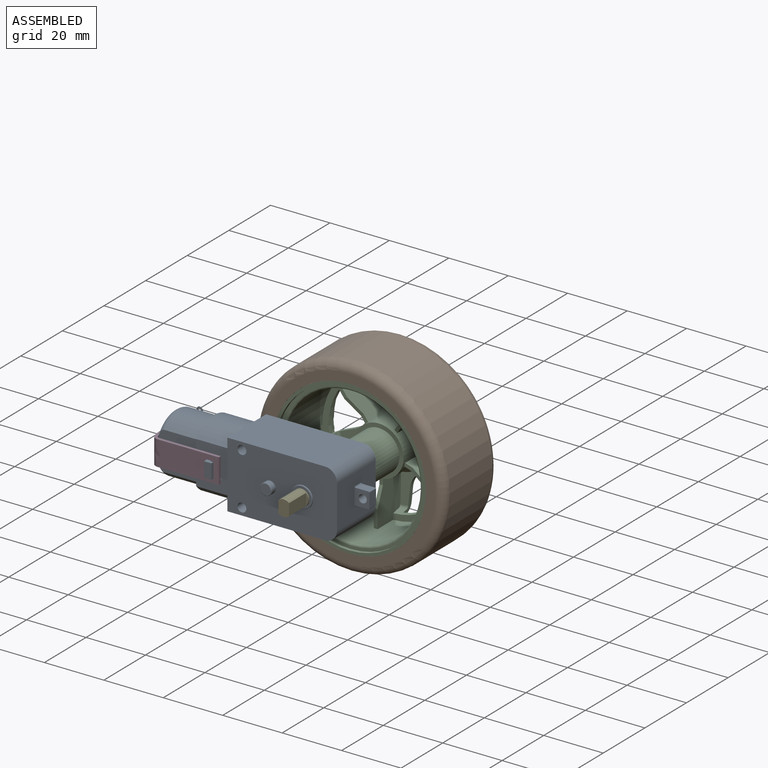
[diagram: assembled view]
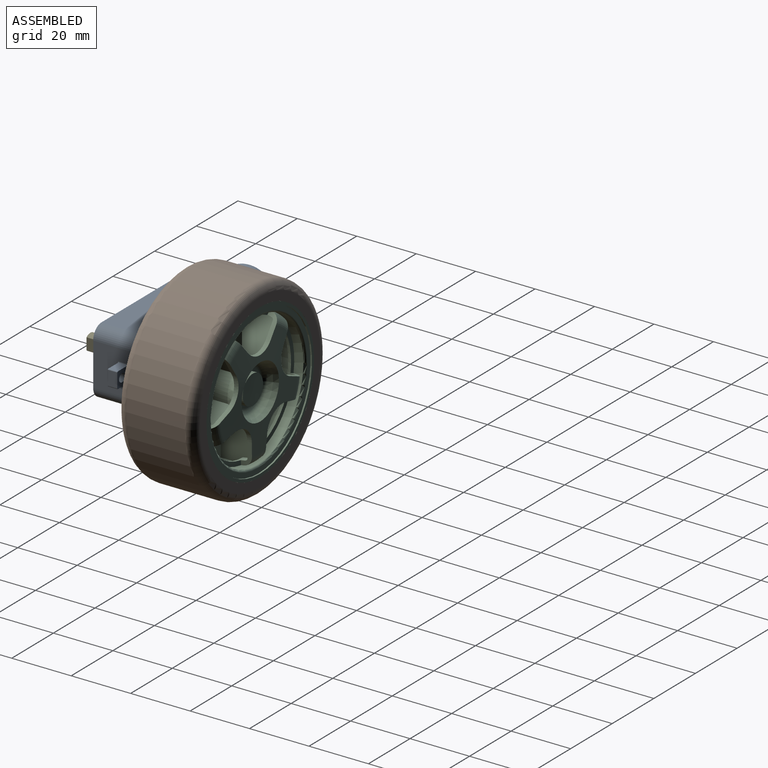
[diagram: assembled view, second angle]
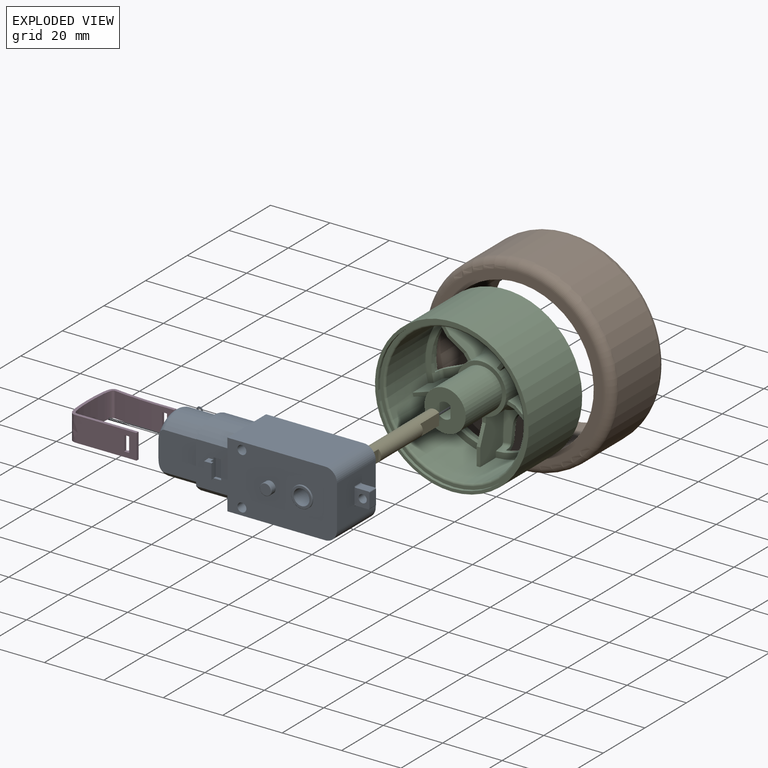
[diagram: exploded view]
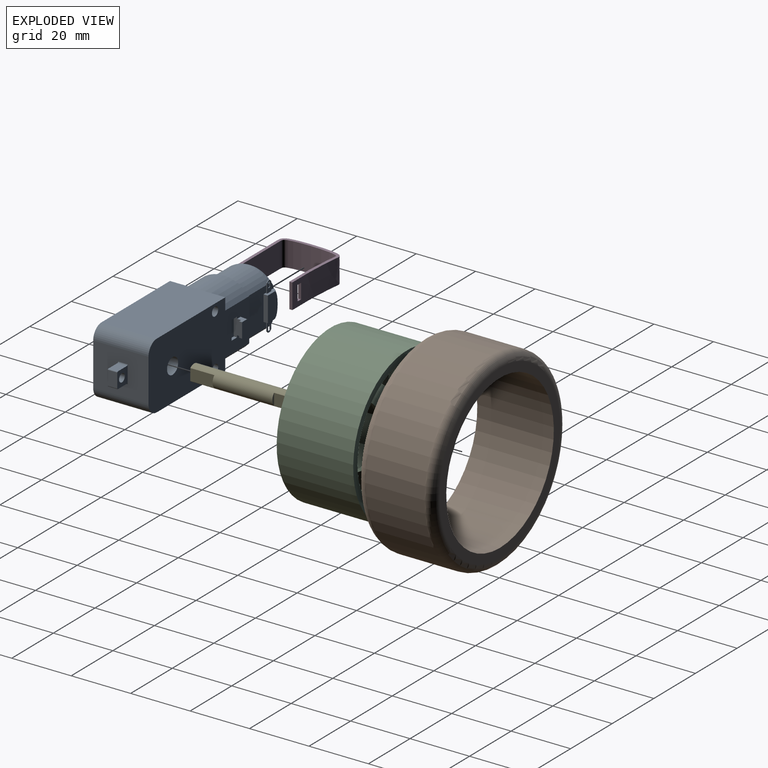
[diagram: exploded view, second angle]
ASSEMBLY  parts=5 mates=5
PART A: 98 faces, bbox 69x23.1x22.4 mm
  f0: plane 14.35x11.5mm, normal (0,-1,0), area 140.4mm2, adj f5,f16,f17,f18,f71,f72,f73,f74
  f1: plane 48.4x22.4mm, normal (0,1,0), area 923.5mm2, adj f4,f6,f7,f8,f9,f10,f11,f12
  f2: plane 4.88x1.45mm, normal (0,0,-1), area 5.9mm2, adj f3,f27,f28,f29,f45,f46,f47,f48
  f3: plane 13.33x12.92mm, normal (0,1,0), area 129.1mm2, adj f2,f18,f20,f21,f26,f27,f29
  f4: plane 8.6x4.03mm, normal (-1,0,0), area 10.6mm2, adj f1,f6,f17
  f5: plane 22.4x10mm, normal (-1,0,0), area 52.5mm2, adj f0,f6,f8,f15,f16,f17
  f6: plane 32.9x18.6mm, normal (0,0,1), area 611.9mm2, adj f1,f4,f5,f13,f15
  f7: plane 8.6x4.03mm, normal (-1,0,0), area 10.6mm2, adj f1,f8,f16
  f8: plane 32.9x18.6mm, normal (0,0,-1), area 611.9mm2, adj f1,f5,f7,f9,f15
  f9: cylinder r=4mm len=18.6mm, axis (0,1,0), area 116.9mm2, adj f1,f8,f10,f15
  f10: plane 18.6x14.4mm, normal (1,0,0), area 248mm2, adj f1,f9,f13,f15,f94,f95,f96,f97
  f11: cylinder r=1.5mm len=18.6mm, axis (0,1,0), area 175.3mm2, adj f1,f15
  f12: cylinder r=2.67mm len=19.1mm, axis (0,1,0), area 321mm2, adj f1,f83
  f13: cylinder r=4mm len=18.6mm, axis (0,1,0), area 116.9mm2, adj f1,f6,f10,f15
  f14: cylinder r=1.5mm len=18.6mm, axis (0,1,0), area 175.3mm2, adj f1,f15
  f15: plane 36.9x22.4mm, normal (0,-1,0), area 753.1mm2, adj f5,f6,f8,f9,f10,f11,f13,f14
  f16: cylinder r=11.2mm len=17.2mm, axis (1,0,0), area 225.5mm2, adj f0,f1,f5,f7,f18
  f17: cylinder r=11.2mm len=17.2mm, axis (1,0,0), area 225.5mm2, adj f0,f1,f4,f5,f18
  f18: plane 22.4x17.2mm, normal (-1,0,0), area 77.6mm2, adj f0,f1,f3,f16,f17,f19,f20,f21
  f19: plane 13.45x12.92mm, normal (0,-1,0), area 171mm2, adj f18,f20,f21,f22,f29
  f20: cylinder r=9.9mm len=15mm, axis (1,0,0), area 194.9mm2, adj f3,f18,f19,f29
  f21: cylinder r=9.9mm len=15mm, axis (1,0,0), area 194.9mm2, adj f3,f18,f19,f29
  f22: plane 15.8x15.4mm, normal (-1,0,0), area 123.4mm2, adj f19,f23,f24,f29
  f23: plane 5.93x2.15mm, normal (0,-1,0), area 12.8mm2, adj f22,f24,f25
  f24: cylinder r=4.9mm len=9.8mm, axis (1,0,0), area 52.5mm2, adj f22,f23,f25
  f25: plane 9.8x8.8mm, normal (-1,0,0), area 71.4mm2, adj f23,f24
  f26: plane 4.88x1.45mm, normal (0,0,1), area 5.9mm2, adj f3,f27,f28,f29,f30,f31,f32,f33
  f27: plane 8.4x1.45mm, normal (1,0,0), area 12.2mm2, adj f2,f3,f26,f28
  f28: plane 8.4x4.7mm, normal (0,1,0), area 36.9mm2, adj f2,f26,f27,f29
  f29: torus R=7.9mm, axis (-1,0,0), area 123.9mm2, adj f2,f3,f19,f20,f21,f22,f26,f28
  f30: plane 3.1x0.25mm, normal (1,0,0), area 0.8mm2, adj f26,f31,f33,f44
  f31: plane 3.7x2mm, normal (0,1,0), area 5.2mm2, adj f26,f30,f32,f34,f35,f36,f37,f38
  f32: plane 3.1x0.25mm, normal (-1,0,0), area 0.8mm2, adj f26,f31,f33,f43
  f33: plane 3.7x2mm, normal (0,-1,0), area 5.2mm2, adj f26,f30,f32,f34,f35,f36,f37,f38
  f34: plane 0.8x0.25mm, normal (0,0,1), area 0.2mm2, adj f31,f33,f43,f44
  f35: cylinder r=0.3mm len=0.3mm, axis (0,1,0), area 0.1mm2, adj f31,f33,f36,f40
  f36: plane 1.3x0.25mm, normal (-1,0,0), area 0.3mm2, adj f31,f33,f35,f37
  f37: cylinder r=0.3mm len=0.3mm, axis (0,1,0), area 0.1mm2, adj f31,f33,f36,f38
  f38: plane 0.4x0.25mm, normal (0,0,1), area 0.1mm2, adj f31,f33,f37,f39
  f39: cylinder r=0.3mm len=0.3mm, axis (0,1,0), area 0.1mm2, adj f31,f33,f38,f41
  f40: plane 0.4x0.25mm, normal (0,0,-1), area 0.1mm2, adj f31,f33,f35,f42
  f41: plane 1.3x0.25mm, normal (1,0,0), area 0.3mm2, adj f31,f33,f39,f42
  f42: cylinder r=0.3mm len=0.3mm, axis (0,1,0), area 0.1mm2, adj f31,f33,f40,f41
  f43: plane 0.6x0.6mm, normal (-0.71,0,0.71), area 0.2mm2, adj f31,f32,f33,f34
  f44: plane 0.6x0.6mm, normal (0.71,0,0.71), area 0.2mm2, adj f30,f31,f33,f34
  f45: plane 3.1x0.25mm, normal (1,0,0), area 0.8mm2, adj f2,f46,f48,f59
  f46: plane 3.7x2mm, normal (0,-1,0), area 5.2mm2, adj f2,f45,f47,f49,f50,f51,f52,f53
  f47: plane 3.1x0.25mm, normal (-1,0,0), area 0.8mm2, adj f2,f46,f48,f58
  f48: plane 3.7x2mm, normal (0,1,0), area 5.2mm2, adj f2,f45,f47,f49,f50,f51,f52,f53
  f49: plane 0.8x0.25mm, normal (0,0,-1), area 0.2mm2, adj f46,f48,f58,f59
  f50: cylinder r=0.3mm len=0.3mm, axis (0,1,0), area 0.1mm2, adj f46,f48,f51,f55
  f51: plane 1.3x0.25mm, normal (1,0,0), area 0.3mm2, adj f46,f48,f50,f52
  f52: cylinder r=0.3mm len=0.3mm, axis (0,1,0), area 0.1mm2, adj f46,f48,f51,f53
  f53: plane 0.4x0.25mm, normal (0,0,-1), area 0.1mm2, adj f46,f48,f52,f54
  f54: cylinder r=0.3mm len=0.3mm, axis (0,1,0), area 0.1mm2, adj f46,f48,f53,f56
  f55: plane 0.4x0.25mm, normal (0,0,1), area 0.1mm2, adj f46,f48,f50,f57
  f56: plane 1.3x0.25mm, normal (-1,0,0), area 0.3mm2, adj f46,f48,f54,f57
  f57: cylinder r=0.3mm len=0.3mm, axis (0,1,0), area 0.1mm2, adj f46,f48,f55,f56
  f58: plane 0.6x0.6mm, normal (-0.71,0,-0.71), area 0.2mm2, adj f46,f47,f48,f49
  f59: plane 0.6x0.6mm, normal (0.71,0,-0.71), area 0.2mm2, adj f45,f46,f48,f49
  f60: plane 2.6x1.1mm, normal (0,0,-1), area 2.9mm2, adj f1,f61,f63,f64
  f61: plane 6.3x1.1mm, normal (-1,0,0), area 6.9mm2, adj f1,f60,f62,f64
  f62: plane 2.6x1.1mm, normal (0,0,1), area 2.9mm2, adj f1,f61,f63,f64
  f63: plane 6.3x2.5mm, normal (1,0,0), area 13.9mm2, adj f1,f60,f62,f64,f65,f66,f69
  f64: plane 6.3x2.6mm, normal (0,1,0), area 16.4mm2, adj f60,f61,f62,f63
  f65: plane 2.65x2.4mm, normal (0,0,1), area 4.7mm2, adj f1,f63,f67,f68,f69,f70
  f66: plane 2.65x2.4mm, normal (0,0,-1), area 4.7mm2, adj f1,f63,f67,f68,f69,f70
  f67: plane 5x2.4mm, normal (-1,0.09,0), area 12mm2, adj f1,f65,f66,f68
  f68: plane 5x2.44mm, normal (0,1,0), area 12.2mm2, adj f65,f66,f67,f70
  f69: plane 5x1mm, normal (0,-1,0), area 5mm2, adj f63,f65,f66,f70
  f70: plane 5x1mm, normal (1,0,0), area 5mm2, adj f65,f66,f68,f69
  f71: plane 2.6x1.1mm, normal (0,0,-1), area 2.9mm2, adj f0,f72,f74,f75
  f72: plane 6.3x2.5mm, normal (1,0,0), area 13.9mm2, adj f0,f71,f73,f75,f76,f78,f80
  f73: plane 2.6x1.1mm, normal (0,0,1), area 2.9mm2, adj f0,f72,f74,f75
  f74: plane 6.3x1.1mm, normal (-1,0,0), area 6.9mm2, adj f0,f71,f73,f75
  f75: plane 6.3x2.6mm, normal (0,-1,0), area 16.4mm2, adj f71,f72,f73,f74
  f76: plane 2.65x2.4mm, normal (0,0,1), area 4.7mm2, adj f0,f72,f77,f79,f80,f81
  f77: plane 5x2.4mm, normal (-1,-0.09,0), area 12mm2, adj f0,f76,f78,f79
  f78: plane 2.65x2.4mm, normal (0,0,-1), area 4.7mm2, adj f0,f72,f77,f79,f80,f81
  f79: plane 5x2.44mm, normal (0,-1,0), area 12.2mm2, adj f76,f77,f78,f81
  f80: plane 5x1mm, normal (0,1,0), area 5mm2, adj f72,f76,f78,f81
  f81: plane 5x1mm, normal (1,0,0), area 5mm2, adj f76,f78,f79,f80
  f82: cylinder r=3.58mm len=7.15mm, axis (0,1,0), area 6.7mm2, adj f15,f87
  f83: plane 6.75x6.75mm, normal (0,-1,0), area 13.3mm2, adj f12,f87
  f84: cylinder r=1.98mm len=3.95mm, axis (0,1,0), area 23.6mm2, adj f15,f86
  f85: plane 3.55x3.55mm, normal (0,-1,0), area 9.9mm2, adj f86
  f86: torus R=1.78mm, axis (0,-1,0), area 3.8mm2, adj f84,f85
  f87: torus R=3.38mm, axis (0,-1,0), area 6.9mm2, adj f82,f83
  f88: plane 4.3x3.2mm, normal (0,0,-1), area 13.8mm2, adj f89,f94,f95,f96
  f89: cylinder r=0.3mm len=3.2mm, axis (0,1,0), area 1.5mm2, adj f88,f90,f94,f95
  f90: plane 4.8x3.2mm, normal (1,0,0), area 15.4mm2, adj f89,f91,f94,f95
  f91: cylinder r=0.3mm len=3.2mm, axis (0,1,0), area 1.5mm2, adj f90,f93,f94,f95
  f92: cylinder r=1.38mm len=3.2mm, axis (0,1,0), area 27.6mm2, adj f94,f95
  f93: plane 4.3x3.2mm, normal (0,0,1), area 13.8mm2, adj f91,f94,f95,f97
  f94: plane 6.2x5mm, normal (0,-1,0), area 21.1mm2, adj f10,f88,f89,f90,f91,f92,f93,f96
  f95: plane 6.2x5mm, normal (0,1,0), area 21.1mm2, adj f10,f88,f89,f90,f91,f92,f93,f96
  f96: cylinder r=0.4mm len=3.2mm, axis (0,1,0), area 2mm2, adj f10,f88,f94,f95
  f97: cylinder r=0.4mm len=3.2mm, axis (0,1,0), area 2mm2, adj f10,f93,f94,f95
PART B: 6 faces, bbox 69.3x25.8x69.3 mm
  f0: cylinder r=32mm len=64mm, axis (0,-1,0), area 3971mm2, adj f1,f5
  f1: torus R=29mm, axis (0,-1,0), area 915.2mm2, adj f0,f2
  f2: plane 58x58mm, normal (0,-1,0), area 542.8mm2, adj f1,f3
  f3: cylinder r=25.85mm len=51.7mm, axis (0,-1,0), area 4182.3mm2, adj f2,f4
  f4: plane 58x58mm, normal (0,1,0), area 542.8mm2, adj f3,f5
  f5: torus R=29mm, axis (0,-1,0), area 915.2mm2, adj f0,f4
PART C: 111 faces, bbox 52x29.3x52 mm
  f0: torus R=19.66mm, axis (0,1,0), area 3.6mm2, adj f18,f27,f78,f108
  f1: torus R=18.83mm, axis (0,1,0), area 31.2mm2, adj f2,f53,f105,f108
  f2: cone r=22.27mm half-angle=10.5deg, axis (0,1,0), area 6.3mm2, adj f1,f56,f105,f108
  f3: torus R=19.66mm, axis (0,1,0), area 3.6mm2, adj f30,f33,f74,f104
  f4: torus R=18.83mm, axis (0,1,0), area 31.2mm2, adj f5,f53,f101,f104
  f5: cone r=22.27mm half-angle=10.5deg, axis (0,1,0), area 6.3mm2, adj f4,f56,f101,f104
  f6: torus R=19.66mm, axis (0,1,0), area 3.6mm2, adj f36,f39,f70,f100
  f7: torus R=18.83mm, axis (0,1,0), area 31.2mm2, adj f8,f53,f97,f100
  f8: cone r=22.27mm half-angle=10.5deg, axis (0,1,0), area 6.3mm2, adj f7,f56,f97,f100
  f9: torus R=19.66mm, axis (0,1,0), area 3.6mm2, adj f42,f45,f66,f96
  f10: torus R=18.83mm, axis (0,1,0), area 31.2mm2, adj f11,f53,f93,f96
  f11: cone r=22.27mm half-angle=10.5deg, axis (0,1,0), area 6.3mm2, adj f10,f56,f93,f96
  f12: torus R=19.66mm, axis (0,1,0), area 3.6mm2, adj f17,f26,f82,f92
  f13: plane 13.9x13.9mm, normal (0,1,0), area 133.7mm2, adj f47,f86,f87,f88,f89
  f14: plane 6.08x3mm, normal (0,1,0), area 7.2mm2, adj f23,f82,f83,f85
  f15: torus R=19.66mm, axis (0,1,0), area 3.6mm2, adj f18,f27,f83,f109
  f16: torus R=19.66mm, axis (0,1,0), area 3.6mm2, adj f17,f26,f67,f93
  f17: cone r=19.71mm half-angle=87.4deg, axis (0,1,0), area 70.7mm2, adj f12,f16,f19,f67,f82,f91,f92,f93
  f18: cone r=19.71mm half-angle=87.4deg, axis (0,1,0), area 70.7mm2, adj f0,f15,f20,f78,f83,f107,f108,f109
  f19: cone r=9.95mm half-angle=24deg, axis (0,-1,0), area 41.4mm2, adj f17,f21,f67,f82
  f20: cone r=9.95mm half-angle=24deg, axis (0,-1,0), area 41.4mm2, adj f18,f21,f78,f83
  f21: cylinder r=8.32mm len=16.63mm, axis (0,1,0), area 297.5mm2, adj f19,f20,f22,f31,f37,f43,f66,f67
  f22: plane 16.63x16.63mm, normal (0,1,0), area 65.5mm2, adj f21,f47
  f23: cylinder r=23.15mm len=46.3mm, axis (0,1,0), area 2660.5mm2, adj f14,f24,f25,f28,f32,f34,f38,f40
  f24: plane 21.22x16.04mm, normal (0,1,0), area 53.6mm2, adj f23,f26,f67,f82
  f25: plane 24.95x10.25mm, normal (0,1,0), area 53.6mm2, adj f23,f27,f78,f83
  f26: cone r=21.14mm half-angle=10.5deg, axis (0,1,0), area 37.5mm2, adj f12,f16,f24,f67,f82,f92,f93,f94
  f27: cone r=21.14mm half-angle=10.5deg, axis (0,1,0), area 37.5mm2, adj f0,f15,f25,f78,f83,f108,f109,f110
  f28: plane 5.56x4.5mm, normal (0,1,0), area 7.2mm2, adj f23,f78,f79,f81
  f29: torus R=19.66mm, axis (0,1,0), area 3.6mm2, adj f30,f33,f79,f105
  f30: cone r=19.71mm half-angle=87.4deg, axis (0,1,0), area 70.7mm2, adj f3,f29,f31,f74,f79,f103,f104,f105
  f31: cone r=9.95mm half-angle=24deg, axis (0,-1,0), area 41.4mm2, adj f21,f30,f74,f79
  f32: plane 26.23x5.7mm, normal (0,1,0), area 53.6mm2, adj f23,f33,f74,f79
  f33: cone r=21.14mm half-angle=10.5deg, axis (0,1,0), area 37.5mm2, adj f3,f29,f32,f74,f79,f104,f105,f106
  f34: plane 5.56x4.5mm, normal (0,1,0), area 7.2mm2, adj f23,f74,f75,f77
  f35: torus R=19.66mm, axis (0,1,0), area 3.6mm2, adj f36,f39,f75,f101
  f36: cone r=19.71mm half-angle=87.4deg, axis (0,1,0), area 70.7mm2, adj f6,f35,f37,f70,f75,f99,f100,f101
  f37: cone r=9.95mm half-angle=24deg, axis (0,-1,0), area 41.4mm2, adj f21,f36,f70,f75
  f38: plane 24.95x10.25mm, normal (0,1,0), area 53.6mm2, adj f23,f39,f70,f75
  f39: cone r=21.14mm half-angle=10.5deg, axis (0,1,0), area 37.5mm2, adj f6,f35,f38,f70,f75,f100,f101,f102
  f40: plane 6.08x3mm, normal (0,1,0), area 7.2mm2, adj f23,f70,f71,f73
  f41: torus R=19.66mm, axis (0,1,0), area 3.6mm2, adj f42,f45,f71,f97
  f42: cone r=19.71mm half-angle=87.4deg, axis (0,1,0), area 70.7mm2, adj f9,f41,f43,f66,f71,f95,f96,f97
  f43: cone r=9.95mm half-angle=24deg, axis (0,-1,0), area 41.4mm2, adj f21,f42,f66,f71
  f44: plane 21.22x16.04mm, normal (0,1,0), area 53.6mm2, adj f23,f45,f66,f71
  f45: cone r=21.14mm half-angle=10.5deg, axis (0,1,0), area 37.5mm2, adj f9,f41,f44,f66,f71,f96,f97,f98
  f46: plane 6.01x1.2mm, normal (0,1,0), area 7.2mm2, adj f23,f66,f67,f69
  f47: cylinder r=6.95mm len=17.5mm, axis (0,1,0), area 764.2mm2, adj f13,f22
  f48: plane 9.8x9.8mm, normal (0,-1,0), area 75.4mm2, adj f49
  f49: cylinder r=4.9mm len=9.8mm, axis (0,1,0), area 52.3mm2, adj f48,f50
  f50: plane 11.66x11.66mm, normal (0,-1,0), area 31.4mm2, adj f49,f51
  f51: torus R=5.83mm, axis (0,1,0), area 99.3mm2, adj f50,f52
  f52: cone r=7.66mm half-angle=24deg, axis (0,-1,0), area 172.6mm2, adj f51,f53
  f53: cone r=9mm half-angle=87.4deg, axis (0,1,0), area 448.3mm2, adj f1,f4,f7,f10,f52,f54,f91,f92
  f54: torus R=18.83mm, axis (0,1,0), area 31.2mm2, adj f53,f55,f92,f109
  f55: cone r=22.27mm half-angle=10.5deg, axis (0,1,0), area 6.3mm2, adj f54,f56,f92,f109
  f56: cylinder r=22.45mm len=44.9mm, axis (0,1,0), area 437.3mm2, adj f2,f5,f8,f11,f55,f57,f94,f98
  f57: torus R=23.15mm, axis (0,1,0), area 156.9mm2, adj f56,f58
  f58: plane 49.7x49.7mm, normal (0,-1,0), area 256.4mm2, adj f57,f59
  f59: cylinder r=24.85mm len=49.7mm, axis (0,1,0), area 78.1mm2, adj f58,f60
  f60: plane 51.7x51.7mm, normal (0,-1,0), area 159.3mm2, adj f59,f61
  f61: cylinder r=25.85mm len=51.7mm, axis (0,1,0), area 4182.3mm2, adj f60,f62
  f62: plane 51.7x51.7mm, normal (0,1,0), area 159.3mm2, adj f61,f63
  f63: cylinder r=24.85mm len=49.7mm, axis (0,1,0), area 156.1mm2, adj f62,f64
  f64: plane 49.7x49.7mm, normal (0,1,0), area 153mm2, adj f63,f65
  f65: torus R=23.85mm, axis (0,1,0), area 161.7mm2, adj f23,f64
  f66: plane 14.99x11.55mm, normal (1,0,0), area 139.4mm2, adj f9,f21,f23,f42,f43,f44,f45,f46
  f67: plane 14.99x11.55mm, normal (-1,0,0), area 139.4mm2, adj f16,f17,f19,f21,f23,f24,f26,f46
  f68: plane 2.52x1.2mm, normal (0,1,0), area 3mm2, adj f21,f66,f67,f69
  f69: revolved ~6.36x2.65mm, area 8.5mm2, adj f46,f66,f67,f68
  f70: plane 14.27x11.55mm, normal (0.31,0,-0.95), area 139.4mm2, adj f6,f21,f23,f36,f37,f38,f39,f40
  f71: plane 14.27x11.55mm, normal (-0.31,0,0.95), area 139.4mm2, adj f21,f23,f40,f41,f42,f43,f44,f45
  f72: plane 2.75x1.91mm, normal (0,1,0), area 3mm2, adj f21,f70,f71,f73
  f73: revolved ~6.59x3.1mm, area 8.5mm2, adj f40,f70,f71,f72
  f74: plane 12.16x11.55mm, normal (-0.81,0,-0.59), area 139.4mm2, adj f3,f21,f23,f30,f31,f32,f33,f34
  f75: plane 12.16x11.55mm, normal (0.81,0,0.59), area 139.4mm2, adj f21,f23,f34,f35,f36,f37,f38,f39
  f76: plane 2.73x2.44mm, normal (0,1,0), area 3mm2, adj f21,f74,f75,f77
  f77: revolved ~6.22x4.7mm, area 8.5mm2, adj f34,f74,f75,f76
  f78: plane 12.16x11.55mm, normal (-0.81,0,0.59), area 139.4mm2, adj f0,f18,f20,f21,f23,f25,f27,f28
  f79: plane 12.16x11.55mm, normal (0.81,0,-0.59), area 139.4mm2, adj f21,f23,f28,f29,f30,f31,f32,f33
  f80: plane 2.73x2.44mm, normal (0,1,0), area 3mm2, adj f21,f78,f79,f81
  f81: revolved ~5.84x5.25mm, area 8.5mm2, adj f28,f78,f79,f80
  f82: plane 14.27x11.55mm, normal (0.31,0,0.95), area 139.4mm2, adj f12,f14,f17,f19,f21,f23,f24,f26
  f83: plane 14.27x11.55mm, normal (-0.31,0,-0.95), area 139.4mm2, adj f14,f15,f18,f20,f21,f23,f25,f27
  f84: plane 2.75x1.91mm, normal (0,1,0), area 3mm2, adj f21,f82,f83,f85
  f85: revolved ~6.41x3.76mm, area 8.5mm2, adj f14,f82,f83,f84
  f86: plane 24x3.86mm, normal (1,0,0), area 92.7mm2, adj f13,f87,f89,f90
  f87: cylinder r=2.67mm len=24mm, axis (0,1,0), area 98.1mm2, adj f13,f86,f88,f90
  f88: plane 24x3.86mm, normal (-1,0,0), area 92.7mm2, adj f13,f87,f89,f90
  f89: cylinder r=2.67mm len=24mm, axis (0,1,0), area 98.1mm2, adj f13,f86,f88,f90
  f90: plane 5.35x3.7mm, normal (0,1,0), area 18.1mm2, adj f86,f87,f88,f89
  f91: cylinder r=7mm len=8.65mm, axis (0,1,0), area 18.3mm2, adj f17,f53,f92,f93
  f92: plane 8.14x4.34mm, normal (0.24,0,0.97), area 13.4mm2, adj f12,f17,f26,f53,f54,f55,f91,f94
  f93: plane 8.35x4.34mm, normal (-1,0,0.07), area 13.4mm2, adj f10,f11,f16,f17,f26,f53,f91,f94
  f94: plane 17.09x12.79mm, normal (0,-1,0), area 31.9mm2, adj f26,f56,f92,f93
  f95: cylinder r=7mm len=8.65mm, axis (0,1,0), area 18.3mm2, adj f42,f53,f96,f97
  f96: plane 8.35x4.34mm, normal (1,0,0.07), area 13.4mm2, adj f9,f10,f11,f42,f45,f53,f95,f98
  f97: plane 8.14x4.34mm, normal (-0.24,0,0.97), area 13.4mm2, adj f7,f8,f41,f42,f45,f53,f95,f98
  f98: plane 17.09x12.79mm, normal (0,-1,0), area 31.9mm2, adj f45,f56,f96,f97
  f99: cylinder r=7mm len=10.17mm, axis (0,1,0), area 18.3mm2, adj f36,f53,f100,f101
  f100: plane 7.78x4.34mm, normal (0.38,0,-0.93), area 13.4mm2, adj f6,f7,f8,f36,f39,f53,f99,f102
  f101: plane 7.16x4.55mm, normal (0.85,0,0.53), area 13.4mm2, adj f4,f5,f35,f36,f39,f53,f99,f102
  f102: plane 20.09x7.7mm, normal (0,-1,0), area 31.9mm2, adj f39,f56,f100,f101
  f103: cylinder r=7mm len=10.69mm, axis (0,1,0), area 18.3mm2, adj f30,f53,f104,f105
  f104: plane 6.47x5.51mm, normal (-0.76,0,-0.65), area 13.4mm2, adj f3,f4,f5,f30,f33,f53,f103,f106
  f105: plane 6.47x5.51mm, normal (0.76,0,-0.65), area 13.4mm2, adj f1,f2,f29,f30,f33,f53,f103,f106
  f106: plane 21.12x3.83mm, normal (0,-1,0), area 31.9mm2, adj f33,f56,f104,f105
  f107: cylinder r=7mm len=10.17mm, axis (0,1,0), area 18.3mm2, adj f18,f53,f108,f109
  f108: plane 7.16x4.55mm, normal (-0.85,0,0.53), area 13.4mm2, adj f0,f1,f2,f18,f27,f53,f107,f110
  f109: plane 7.78x4.34mm, normal (-0.38,0,-0.93), area 13.4mm2, adj f15,f18,f27,f53,f54,f55,f107,f110
  f110: plane 20.09x7.7mm, normal (0,-1,0), area 31.9mm2, adj f27,f56,f108,f109
PART D: 18 faces, bbox 24.5x21.3x9.5 mm
  f0: bspline ~19.9x18.21mm, area 452mm2, adj f2,f3,f4,f9,f11,f12,f13,f14
  f1: bspline ~20.9x20.23mm, area 478.3mm2, adj f2,f3,f6,f7,f10,f11,f12,f13
  f2: plane 24.51x21.34mm, normal (0,0,1), area 62.5mm2, adj f0,f1,f4,f5,f6,f7,f8,f9
  f3: plane 24.51x21.33mm, normal (0,0,-1), area 62.5mm2, adj f0,f1,f4,f5,f6,f7,f8,f9
  f4: plane 8.4x2.49mm, normal (-0.01,-1,0), area 20.9mm2, adj f0,f2,f3,f5,f15
  f5: plane 8.4x1mm, normal (1,-0.01,0), area 8.4mm2, adj f2,f3,f4,f6
  f6: plane 8.4x2.5mm, normal (0.01,1,0), area 21mm2, adj f1,f2,f3,f5,f15
  f7: plane 8.4x2.5mm, normal (0,-1,0), area 21mm2, adj f1,f2,f3,f8
  f8: plane 8.4x1mm, normal (1,0,0), area 8.4mm2, adj f2,f3,f7,f9
  f9: plane 8.4x2.51mm, normal (0,1,0), area 21.1mm2, adj f0,f2,f3,f8,f10
  f10: plane 5x1mm, normal (-1,0,0), area 5mm2, adj f1,f9,f11,f13
  f11: plane 1.79x1.14mm, normal (0,0,-1), area 1.6mm2, adj f0,f1,f10,f12
  f12: plane 5x1mm, normal (1,0,0), area 5mm2, adj f0,f1,f11,f13
  f13: plane 1.79x1.14mm, normal (0,0,1), area 1.6mm2, adj f0,f1,f10,f12
  f14: plane 5x1mm, normal (1,0,0), area 5mm2, adj f0,f1,f16,f17
  f15: plane 5x1mm, normal (-1,0,0), area 5mm2, adj f4,f6,f16,f17
  f16: plane 1.78x1.14mm, normal (0,0,1), area 1.7mm2, adj f0,f1,f14,f15
  f17: plane 1.78x1.14mm, normal (0,0,-1), area 1.7mm2, adj f0,f1,f14,f15
PART E: 11 faces, bbox 5.4x37.2x5.4 mm
  f0: plane 3.96x0.88mm, normal (0,-1,0), area 2.4mm2, adj f2,f9
  f1: plane 3.96x0.88mm, normal (0,1,0), area 2.4mm2, adj f2,f5
  f2: cylinder r=2.67mm len=37.2mm, axis (0,1,0), area 472.9mm2, adj f0,f1,f3,f4,f5,f6,f7,f8
  f3: plane 3.96x0.88mm, normal (0,-1,0), area 2.4mm2, adj f2,f8
  f4: plane 3.96x0.88mm, normal (0,1,0), area 2.4mm2, adj f2,f6
  f5: plane 9x3.96mm, normal (-1,0,0), area 35.6mm2, adj f1,f2,f7
  f6: plane 9x3.96mm, normal (1,0,0), area 35.6mm2, adj f2,f4,f7
  f7: plane 5.35x3.6mm, normal (0,1,0), area 17.7mm2, adj f2,f5,f6
  f8: plane 8.1x3.96mm, normal (1,0,0), area 32.1mm2, adj f2,f3,f10
  f9: plane 8.1x3.96mm, normal (-1,0,0), area 32.1mm2, adj f0,f2,f10
  f10: plane 5.35x3.6mm, normal (0,-1,0), area 17.7mm2, adj f2,f8,f9
PLACE A t=(-2.16,0,0)mm
PLACE B t=(-2.16,52.35,0)mm
PLACE C rot(axis=(1,0,0),180deg) t=(-2.16,-1.9,0)mm
PLACE D t=(-2.16,0,0)mm
PLACE E t=(-2.16,0,0)mm
MATE cylindrical E.f2 <-> A.f12  axis (0,1,0) through (-2.16,-0.5,0)mm
MATE fastened D.f10 <-> A.f72  axis (-1,0,0) through (-33.11,-8.6,2.5)mm
MATE revolute B.f0 <-> C.f0  axis (0,1,0) through (-2.16,38.1,0)mm
MATE revolute C.f0 <-> E.f2  axis (0,-1,0) through (-2.16,9.1,0)mm
MATE planar E.f3 <-> A.f82  axis (0,-1,0) through (0,-11,0)mm
